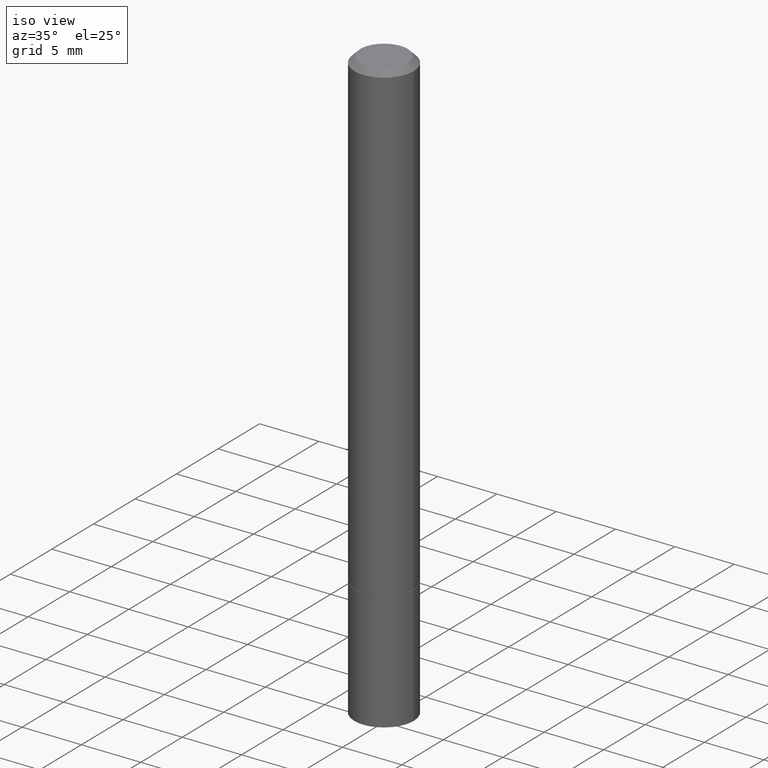
[diagram: clean part render]
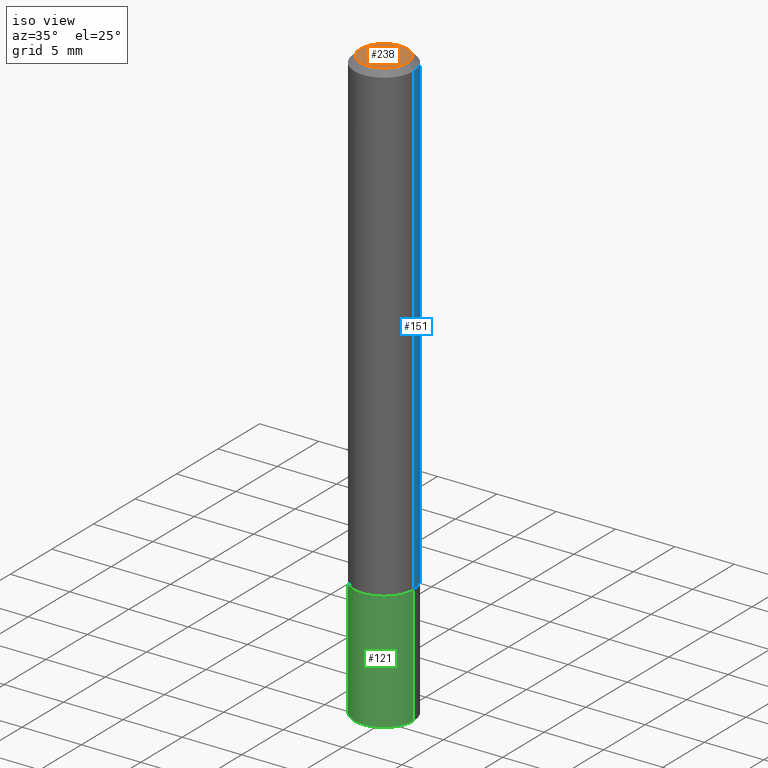
[diagram: same view with three faces highlighted in distinct colors, each labeled with its STEP entity id]
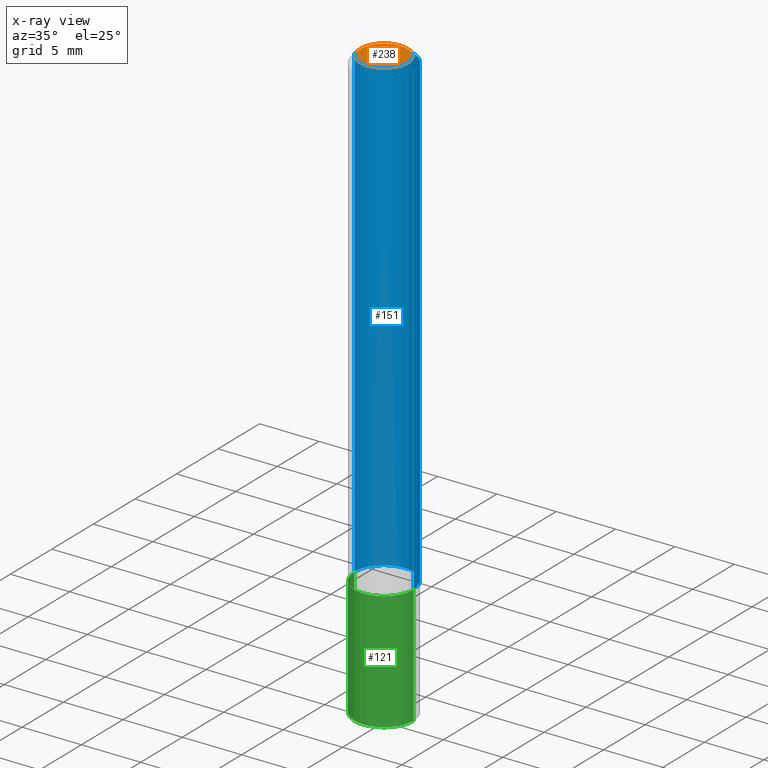
[diagram: x-ray of the same camera — body ghosted, the three highlighted faces saturated]
A machine part, iso view with three faces highlighted in distinct colors.
The next image is the same camera in x-ray (body ghosted, the three faces saturated) — at least one of them is partly hidden behind the body in this view.
Their STEP definitions:

[orange] entity #238 — the highlighted planar face has unit normal (0, -0, -1).
#5 = CIRCLE ( 'NONE', #317, 0.07844999999999982543 ) ;
#7 = DIRECTION ( 'NONE',  ( -1.000000000000000000, 6.982962677686265922E-15, -4.876176775795935793E-29 ) ) ;
#69 = EDGE_CURVE ( 'NONE', #126, #335, #240, .T. ) ;
#89 = DIRECTION ( 'NONE',  ( -2.445468806185136597E-29, 3.491481338843145583E-15, 1.000000000000000000 ) ) ;
#104 = AXIS2_PLACEMENT_3D ( 'NONE', #174, #348, #290 ) ;
#120 = CARTESIAN_POINT ( 'NONE',  ( 5.478134220644863581E-16, 0.07844999999999982543, -2.739067110322441651E-16 ) ) ;
#126 = VERTEX_POINT ( 'NONE', #160 ) ;
#160 = CARTESIAN_POINT ( 'NONE',  ( 0.07844999999999982543, -6.417258612913221441E-16, 4.159044147803931210E-30 ) ) ;
#174 = CARTESIAN_POINT ( 'NONE',  ( 0.000000000000000000, 0.000000000000000000, 0.000000000000000000 ) ) ;
#175 = PLANE ( 'NONE',  #246 ) ;
#189 = CARTESIAN_POINT ( 'NONE',  ( -0.07844999999999982543, 5.827282354529176128E-16, -3.953055038153092165E-30 ) ) ;
#204 = FACE_OUTER_BOUND ( 'NONE', #242, .T. ) ;
#238 = ADVANCED_FACE ( 'NONE', ( #204 ), #175, .F. ) ;
#239 = CARTESIAN_POINT ( 'NONE',  ( 0.000000000000000000, 0.000000000000000000, 0.000000000000000000 ) ) ;
#240 = CIRCLE ( 'NONE', #104, 0.07844999999999982543 ) ;
#241 = DIRECTION ( 'NONE',  ( 1.000000000000000000, -6.982962677686265922E-15, 4.876176775795936914E-29 ) ) ;
#242 = EDGE_LOOP ( 'NONE', ( #276, #357 ) ) ;
#246 = AXIS2_PLACEMENT_3D ( 'NONE', #120, #262, #7 ) ;
#262 = DIRECTION ( 'NONE',  ( 2.438088387897960049E-29, -3.491481338843145188E-15, -1.000000000000000000 ) ) ;
#276 = ORIENTED_EDGE ( 'NONE', *, *, #294, .T. ) ;
#290 = DIRECTION ( 'NONE',  ( 1.000000000000000000, -6.982962677686265922E-15, 4.876176775795936914E-29 ) ) ;
#294 = EDGE_CURVE ( 'NONE', #335, #126, #5, .T. ) ;
#317 = AXIS2_PLACEMENT_3D ( 'NONE', #239, #89, #241 ) ;
#335 = VERTEX_POINT ( 'NONE', #189 ) ;
#348 = DIRECTION ( 'NONE',  ( -2.445468806185136597E-29, 3.491481338843145583E-15, 1.000000000000000000 ) ) ;
#357 = ORIENTED_EDGE ( 'NONE', *, *, #69, .T. ) ;

[blue] entity #151 — the highlighted cylindrical surface (edge-blend (fillet) strip) has radius 2.5006 mm, axis along (-0, 0, 1).
#2 = DIRECTION ( 'NONE',  ( 1.000000000000000000, -6.982962677686265922E-15, 0.000000000000000000 ) ) ;
#13 = CARTESIAN_POINT ( 'NONE',  ( 0.000000000000000000, 0.000000000000000000, 0.000000000000000000 ) ) ;
#21 = VERTEX_POINT ( 'NONE', #87 ) ;
#33 = CARTESIAN_POINT ( 'NONE',  ( -0.09844999999999999585, -2.082832155568282351E-15, -1.573800000000000088 ) ) ;
#37 = DIRECTION ( 'NONE',  ( -2.445468806185136597E-29, 3.491481338843145583E-15, 1.000000000000000000 ) ) ;
#46 = DIRECTION ( 'NONE',  ( 1.000000000000000000, -6.982962677686266711E-15, 4.876176775795935793E-29 ) ) ;
#85 = ORIENTED_EDGE ( 'NONE', *, *, #111, .F. ) ;
#87 = CARTESIAN_POINT ( 'NONE',  ( 0.09844999999999980156, -7.452456546574689274E-16, -0.02000000000000002123 ) ) ;
#99 = DIRECTION ( 'NONE',  ( -2.445468806185136597E-29, 3.491481338843145583E-15, 1.000000000000000000 ) ) ;
#105 = CIRCLE ( 'NONE', #297, 0.09844999999999980156 ) ;
#107 = VERTEX_POINT ( 'NONE', #33 ) ;
#111 = EDGE_CURVE ( 'NONE', #308, #21, #191, .T. ) ;
#140 = AXIS2_PLACEMENT_3D ( 'NONE', #13, #325, #46 ) ;
#150 = CARTESIAN_POINT ( 'NONE',  ( 3.848678807174168313E-29, -5.494893331071342359E-15, -1.573800000000000088 ) ) ;
#151 = ADVANCED_FACE ( 'NONE', ( #250 ), #162, .T. ) ;
#159 = CARTESIAN_POINT ( 'NONE',  ( 4.890937612370278413E-31, -6.982962677686297772E-17, -0.02000000000000002123 ) ) ;
#162 = CYLINDRICAL_SURFACE ( 'NONE', #140, 0.09844999999999991258 ) ;
#164 = EDGE_LOOP ( 'NONE', ( #359, #172, #233, #85 ) ) ;
#172 = ORIENTED_EDGE ( 'NONE', *, *, #190, .T. ) ;
#177 = CIRCLE ( 'NONE', #361, 0.09844999999999999585 ) ;
#190 = EDGE_CURVE ( 'NONE', #107, #201, #193, .T. ) ;
#191 = LINE ( 'NONE', #355, #208 ) ;
#193 = LINE ( 'NONE', #301, #230 ) ;
#201 = VERTEX_POINT ( 'NONE', #311 ) ;
#208 = VECTOR ( 'NONE', #332, 39.37007874015748143 ) ;
#230 = VECTOR ( 'NONE', #280, 39.37007874015748143 ) ;
#231 = EDGE_CURVE ( 'NONE', #308, #107, #177, .T. ) ;
#233 = ORIENTED_EDGE ( 'NONE', *, *, #343, .F. ) ;
#250 = FACE_OUTER_BOUND ( 'NONE', #164, .T. ) ;
#280 = DIRECTION ( 'NONE',  ( -2.445468806185136877E-29, 3.491481338843145188E-15, 1.000000000000000000 ) ) ;
#293 = CARTESIAN_POINT ( 'NONE',  ( 0.09844999999999999585, -6.182366006689555708E-15, -1.573800000000000088 ) ) ;
#297 = AXIS2_PLACEMENT_3D ( 'NONE', #159, #99, #352 ) ;
#301 = CARTESIAN_POINT ( 'NONE',  ( -0.09844999999999991258, 6.995293233558180118E-16, -4.842691596355949838E-30 ) ) ;
#308 = VERTEX_POINT ( 'NONE', #293 ) ;
#311 = CARTESIAN_POINT ( 'NONE',  ( -0.09844999999999980156, 6.176430488413486702E-16, -0.02000000000000002123 ) ) ;
#325 = DIRECTION ( 'NONE',  ( -2.445468806185136597E-29, 3.491481338843145583E-15, 1.000000000000000000 ) ) ;
#332 = DIRECTION ( 'NONE',  ( -2.445468806185136877E-29, 3.491481338843145188E-15, 1.000000000000000000 ) ) ;
#343 = EDGE_CURVE ( 'NONE', #21, #201, #105, .T. ) ;
#352 = DIRECTION ( 'NONE',  ( 1.000000000000000000, -6.982962677686266711E-15, 0.000000000000000000 ) ) ;
#355 = CARTESIAN_POINT ( 'NONE',  ( 0.09844999999999991258, -6.874726756182123629E-16, 4.800596035771094310E-30 ) ) ;
#359 = ORIENTED_EDGE ( 'NONE', *, *, #231, .T. ) ;
#361 = AXIS2_PLACEMENT_3D ( 'NONE', #150, #37, #2 ) ;

[green] entity #121 — the highlighted cylindrical surface (edge-blend (fillet) strip) has radius 2.5006 mm, axis along (-0, 0, 1).
#11 = AXIS2_PLACEMENT_3D ( 'NONE', #220, #42, #19 ) ;
#19 = DIRECTION ( 'NONE',  ( 1.000000000000000000, -6.982962677686266711E-15, 4.876176775795936353E-29 ) ) ;
#34 = EDGE_CURVE ( 'NONE', #112, #235, #303, .T. ) ;
#36 = CARTESIAN_POINT ( 'NONE',  ( -0.09844999999999999585, 6.995293233558186035E-16, -4.842691596355954042E-30 ) ) ;
#42 = DIRECTION ( 'NONE',  ( -2.445468806185136597E-29, 3.491481338843145583E-15, 1.000000000000000000 ) ) ;
#54 = CIRCLE ( 'NONE', #263, 0.09844999999999999585 ) ;
#59 = DIRECTION ( 'NONE',  ( 1.000000000000000000, -6.982962677686265922E-15, 0.000000000000000000 ) ) ;
#71 = LINE ( 'NONE', #269, #118 ) ;
#72 = VECTOR ( 'NONE', #181, 39.37007874015748143 ) ;
#78 = CARTESIAN_POINT ( 'NONE',  ( 0.09844999999999999585, -7.560453691130944267E-15, -1.968500000000000139 ) ) ;
#92 = CARTESIAN_POINT ( 'NONE',  ( -0.09844999999999999585, -5.486153590605640426E-15, -1.968500000000000139 ) ) ;
#100 = EDGE_CURVE ( 'NONE', #306, #127, #54, .T. ) ;
#106 = ORIENTED_EDGE ( 'NONE', *, *, #34, .F. ) ;
#112 = VERTEX_POINT ( 'NONE', #353 ) ;
#118 = VECTOR ( 'NONE', #247, 39.37007874015748143 ) ;
#121 = ADVANCED_FACE ( 'NONE', ( #249 ), #166, .T. ) ;
#127 = VERTEX_POINT ( 'NONE', #78 ) ;
#129 = EDGE_CURVE ( 'NONE', #127, #235, #71, .T. ) ;
#149 = CARTESIAN_POINT ( 'NONE',  ( 0.09844999999999999585, -6.185857488028398715E-15, -1.574800000000000200 ) ) ;
#166 = CYLINDRICAL_SURFACE ( 'NONE', #11, 0.09844999999999999585 ) ;
#181 = DIRECTION ( 'NONE',  ( -2.445468806185136877E-29, 3.491481338843145188E-15, 1.000000000000000000 ) ) ;
#184 = ORIENTED_EDGE ( 'NONE', *, *, #207, .F. ) ;
#203 = DIRECTION ( 'NONE',  ( 1.000000000000000000, -6.982962677686265922E-15, 0.000000000000000000 ) ) ;
#205 = CARTESIAN_POINT ( 'NONE',  ( 4.813905344975441835E-29, -6.872981015512731707E-15, -1.968500000000000139 ) ) ;
#207 = EDGE_CURVE ( 'NONE', #306, #112, #244, .T. ) ;
#220 = CARTESIAN_POINT ( 'NONE',  ( 0.000000000000000000, 0.000000000000000000, 0.000000000000000000 ) ) ;
#229 = AXIS2_PLACEMENT_3D ( 'NONE', #259, #261, #203 ) ;
#235 = VERTEX_POINT ( 'NONE', #149 ) ;
#244 = LINE ( 'NONE', #36, #72 ) ;
#247 = DIRECTION ( 'NONE',  ( -2.445468806185136877E-29, 3.491481338843145188E-15, 1.000000000000000000 ) ) ;
#249 = FACE_OUTER_BOUND ( 'NONE', #253, .T. ) ;
#252 = ORIENTED_EDGE ( 'NONE', *, *, #100, .T. ) ;
#253 = EDGE_LOOP ( 'NONE', ( #184, #252, #296, #106 ) ) ;
#259 = CARTESIAN_POINT ( 'NONE',  ( 3.851124275980353356E-29, -5.498384812410186155E-15, -1.574800000000000200 ) ) ;
#261 = DIRECTION ( 'NONE',  ( -2.445468806185136597E-29, 3.491481338843145583E-15, 1.000000000000000000 ) ) ;
#263 = AXIS2_PLACEMENT_3D ( 'NONE', #205, #316, #59 ) ;
#269 = CARTESIAN_POINT ( 'NONE',  ( 0.09844999999999999585, -6.874726756182129545E-16, 4.800596035771099214E-30 ) ) ;
#296 = ORIENTED_EDGE ( 'NONE', *, *, #129, .T. ) ;
#303 = CIRCLE ( 'NONE', #229, 0.09844999999999999585 ) ;
#306 = VERTEX_POINT ( 'NONE', #92 ) ;
#316 = DIRECTION ( 'NONE',  ( -2.445468806185136597E-29, 3.491481338843145583E-15, 1.000000000000000000 ) ) ;
#353 = CARTESIAN_POINT ( 'NONE',  ( -0.09844999999999999585, -5.486153590605640426E-15, -1.574800000000000200 ) ) ;